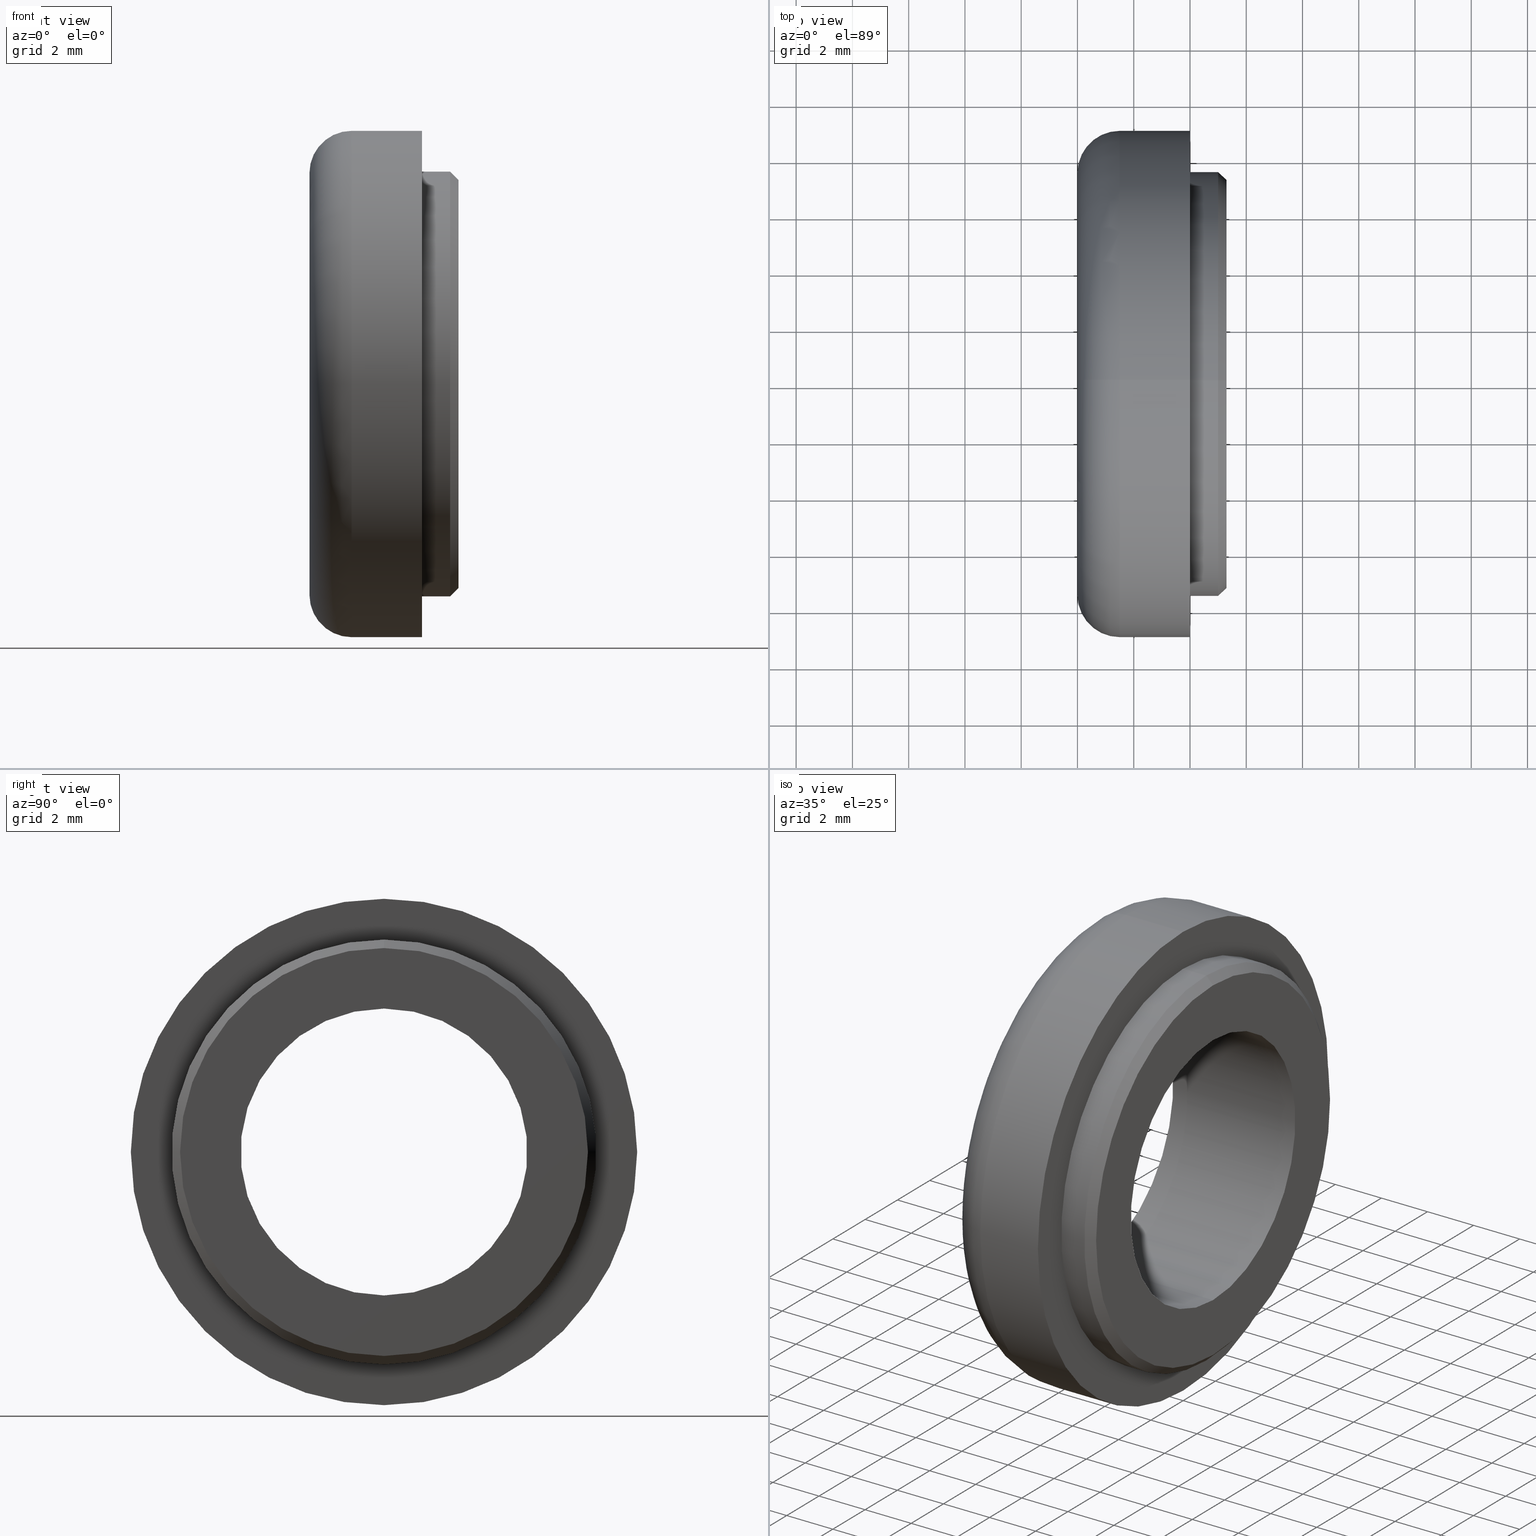
[diagram: canonical four-view strip — front | top / right | iso, engineering-drawing reading convention]
A machine part, canonical four-view strip (front | top / right | iso — engineering-drawing reading convention). The complete STEP part file that produces these views, byte-faithful:
ISO-10303-21;
HEADER;
FILE_DESCRIPTION (( 'STEP AP214' ),
    '1' );
FILE_NAME ('TL_421_M10.STEP',
    '2016-01-25T00:52:32',
    ( '' ),
    ( '' ),
    'SwSTEP 2.0',
    'SolidWorks 2015',
    '' );
FILE_SCHEMA (( 'AUTOMOTIVE_DESIGN' ));
ENDSEC;

DATA;
#1 = DIRECTION ( 'NONE',  ( -1.000000000000000000, -0.0000000000000000000, -0.0000000000000000000 ) ) ;
#2 = EDGE_CURVE ( 'NONE', #653, #156, #154, .T. ) ;
#3 = CARTESIAN_POINT ( 'NONE',  ( 2.500000000000002200, 0.0000000000000000000, 0.0000000000000000000 ) ) ;
#4 = CARTESIAN_POINT ( 'NONE',  ( 1.500000000000000000, 0.0000000000000000000, 0.0000000000000000000 ) ) ;
#5 = CARTESIAN_POINT ( 'NONE',  ( 4.000000000000000000, 0.0000000000000000000, 0.0000000000000000000 ) ) ;
#6 = UNCERTAINTY_MEASURE_WITH_UNIT (LENGTH_MEASURE( 1.000000000000000100E-005 ), #556, 'distance_accuracy_value', 'NONE');
#7 = CIRCLE ( 'NONE', #299, 5.099999999999999600 ) ;
#8 = DIRECTION ( 'NONE',  ( 0.0000000000000000000, 0.0000000000000000000, 1.000000000000000000 ) ) ;
#9 = CIRCLE ( 'NONE', #10, 7.549999999999999800 ) ;
#10 = AXIS2_PLACEMENT_3D ( 'NONE', #534, #194, #658 ) ;
#11 = CARTESIAN_POINT ( 'NONE',  ( 1.500000000000000000, 1.102182119232617700E-015, -9.000000000000000000 ) ) ;
#12 = DIRECTION ( 'NONE',  ( 0.0000000000000000000, 0.0000000000000000000, 1.000000000000000000 ) ) ;
#13 = ORIENTED_EDGE ( 'NONE', *, *, #390, .T. ) ;
#14 = DIRECTION ( 'NONE',  ( -1.000000000000000000, -0.0000000000000000000, -0.0000000000000000000 ) ) ;
#15 = CARTESIAN_POINT ( 'NONE',  ( 0.0000000000000000000, 0.0000000000000000000, 0.0000000000000000000 ) ) ;
#16 = VECTOR ( 'NONE', #252, 1000.000000000000000 ) ;
#17 = CARTESIAN_POINT ( 'NONE',  ( 3.799999999999998000, 0.0000000000000000000, 5.100000000000000500 ) ) ;
#18 = DIRECTION ( 'NONE',  ( 0.0000000000000000000, 0.0000000000000000000, -1.000000000000000000 ) ) ;
#19 = FILL_AREA_STYLE ('',( #144 ) ) ;
#20 = ORIENTED_EDGE ( 'NONE', *, *, #133, .F. ) ;
#21 = AXIS2_PLACEMENT_3D ( 'NONE', #255, #202, #464 ) ;
#22 = ORIENTED_EDGE ( 'NONE', *, *, #602, .T. ) ;
#23 = DIRECTION ( 'NONE',  ( 0.0000000000000000000, 0.0000000000000000000, 1.000000000000000000 ) ) ;
#24 = AXIS2_PLACEMENT_3D ( 'NONE', #293, #569, #12 ) ;
#25 =( NAMED_UNIT ( * ) SI_UNIT ( $, .STERADIAN. ) SOLID_ANGLE_UNIT ( ) );
#26 = CARTESIAN_POINT ( 'NONE',  ( 1.500000000000000000, 0.0000000000000000000, 0.0000000000000000000 ) ) ;
#27 = ITEM_DEFINED_TRANSFORMATION ( 'NONE', 'NONE', #596,  #134 ) ;
#28 = FACE_OUTER_BOUND ( 'NONE', #138, .T. ) ;
#29 = LINE ( 'NONE', #152, #254 ) ;
#30 =( NAMED_UNIT ( * ) SI_UNIT ( $, .STERADIAN. ) SOLID_ANGLE_UNIT ( ) );
#31 = EDGE_CURVE ( 'NONE', #156, #653, #467, .T. ) ;
#32 = VERTEX_POINT ( 'NONE', #149 ) ;
#33 = PRODUCT_DEFINITION ( 'UNKNOWN', '', #258, #215 ) ;
#34 = FACE_BOUND ( 'NONE', #701, .T. ) ;
#35 = CARTESIAN_POINT ( 'NONE',  ( 1.500000000000000000, 0.0000000000000000000, 9.000000000000000000 ) ) ;
#36 = EDGE_CURVE ( 'NONE', #310, #510, #7, .T. ) ;
#37 = DIRECTION ( 'NONE',  ( -1.000000000000000000, -0.0000000000000000000, -0.0000000000000000000 ) ) ;
#38 = DIRECTION ( 'NONE',  ( -1.000000000000000000, 0.0000000000000000000, -0.0000000000000000000 ) ) ;
#39 = CARTESIAN_POINT ( 'NONE',  ( 1.500000000000000000, 0.0000000000000000000, 0.0000000000000000000 ) ) ;
#40 = EDGE_LOOP ( 'NONE', ( #165, #395 ) ) ;
#41 = EDGE_LOOP ( 'NONE', ( #368, #349, #646, #169 ) ) ;
#42 = CARTESIAN_POINT ( 'NONE',  ( 2.500000000000000000, 7.549999999999999800, 0.0000000000000000000 ) ) ;
#43 = ORIENTED_EDGE ( 'NONE', *, *, #93, .F. ) ;
#44 = DIRECTION ( 'NONE',  ( -1.000000000000000000, -0.0000000000000000000, -0.0000000000000000000 ) ) ;
#45 = CARTESIAN_POINT ( 'NONE',  ( 4.000000000000000000, 0.0000000000000000000, 0.0000000000000000000 ) ) ;
#46 = EDGE_CURVE ( 'NONE', #472, #71, #302, .T. ) ;
#47 =( LENGTH_UNIT ( ) NAMED_UNIT ( * ) SI_UNIT ( .MILLI., .METRE. ) );
#48 = AXIS2_PLACEMENT_3D ( 'NONE', #637, #621, #547 ) ;
#49 = SURFACE_STYLE_USAGE ( .BOTH. , #599 ) ;
#50 = ADVANCED_FACE ( 'NONE', ( #445 ), #590, .T. ) ;
#51 = EDGE_LOOP ( 'NONE', ( #382, #403 ) ) ;
#52 = AXIS2_PLACEMENT_3D ( 'NONE', #88, #295, #433 ) ;
#53 = ORIENTED_EDGE ( 'NONE', *, *, #684, .T. ) ;
#54 = ADVANCED_FACE ( 'NONE', ( #603, #142 ), #367, .F. ) ;
#55 =( LENGTH_UNIT ( ) NAMED_UNIT ( * ) SI_UNIT ( .MILLI., .METRE. ) );
#56 = CONICAL_SURFACE ( 'NONE', #132, 7.250000000000000000, 0.7853981633974555000 ) ;
#57 = FACE_OUTER_BOUND ( 'NONE', #663, .T. ) ;
#58 = CARTESIAN_POINT ( 'NONE',  ( 4.000000000000000000, 1.102182119232617700E-015, -9.000000000000000000 ) ) ;
#59 = CARTESIAN_POINT ( 'NONE',  ( 0.0000000000000000000, 0.0000000000000000000, 0.0000000000000000000 ) ) ;
#60 = DIRECTION ( 'NONE',  ( -1.000000000000000000, -0.0000000000000000000, -0.0000000000000000000 ) ) ;
#61 = VERTEX_POINT ( 'NONE', #35 ) ;
#62 = EDGE_LOOP ( 'NONE', ( #488, #193, #638, #250 ) ) ;
#63 = UNCERTAINTY_MEASURE_WITH_UNIT (LENGTH_MEASURE( 1.000000000000000100E-005 ), #135, 'distance_accuracy_value', 'NONE');
#64 = AXIS2_PLACEMENT_3D ( 'NONE', #227, #444, #201 ) ;
#65 = AXIS2_PLACEMENT_3D ( 'NONE', #479, #697, #322 ) ;
#66 = PRODUCT_DEFINITION_SHAPE ( 'NONE', 'NONE',  #734 ) ;
#67 = EDGE_CURVE ( 'NONE', #32, #71, #432, .T. ) ;
#68 = DIRECTION ( 'NONE',  ( 0.0000000000000000000, 0.0000000000000000000, -1.000000000000000000 ) ) ;
#69 = EDGE_LOOP ( 'NONE', ( #94, #223 ) ) ;
#70 = EDGE_LOOP ( 'NONE', ( #20, #22, #591, #523 ) ) ;
#71 = VERTEX_POINT ( 'NONE', #170 ) ;
#72 = DIRECTION ( 'NONE',  ( -1.000000000000000000, -0.0000000000000000000, -0.0000000000000000000 ) ) ;
#73 =( LENGTH_UNIT ( ) NAMED_UNIT ( * ) SI_UNIT ( .MILLI., .METRE. ) );
#74 = SURFACE_STYLE_USAGE ( .BOTH. , #338 ) ;
#75 = DIRECTION ( 'NONE',  ( -1.000000000000000000, -0.0000000000000000000, -0.0000000000000000000 ) ) ;
#76 = DIRECTION ( 'NONE',  ( 0.0000000000000000000, 0.0000000000000000000, -1.000000000000000000 ) ) ;
#77 = CARTESIAN_POINT ( 'NONE',  ( 1.500000000000000000, 6.245698675651500800E-016, -5.099999999999999600 ) ) ;
#78 = COLOUR_RGB ( '',0.7921568627450980000, 0.8196078431372548800, 0.9333333333333333500 ) ;
#79 = PRODUCT_DEFINITION ( 'UNKNOWN', '', #345, #454 ) ;
#80 = CIRCLE ( 'NONE', #495, 7.250000000000000000 ) ;
#81 = CARTESIAN_POINT ( 'NONE',  ( 3.799999999999998000, 0.0000000000000000000, 0.0000000000000000000 ) ) ;
#82 = EDGE_CURVE ( 'NONE', #61, #187, #725, .T. ) ;
#83 = ORIENTED_EDGE ( 'NONE', *, *, #527, .T. ) ;
#84 = EDGE_LOOP ( 'NONE', ( #109, #327 ) ) ;
#85 = DIRECTION ( 'NONE',  ( -1.000000000000000000, -0.0000000000000000000, -0.0000000000000000000 ) ) ;
#86 = CARTESIAN_POINT ( 'NONE',  ( 3.799999999999998000, 6.245698675651501800E-016, -5.100000000000000500 ) ) ;
#87 = EDGE_CURVE ( 'NONE', #657, #640, #703, .T. ) ;
#88 = CARTESIAN_POINT ( 'NONE',  ( -88.98999999999999500, 0.0000000000000000000, 0.0000000000000000000 ) ) ;
#89 = COLOUR_RGB ( '',0.7921568627450980000, 0.8196078431372548800, 0.9333333333333333500 ) ;
#90 = CARTESIAN_POINT ( 'NONE',  ( 3.799999999999998000, 0.0000000000000000000, 0.0000000000000000000 ) ) ;
#91 = VECTOR ( 'NONE', #60, 1000.000000000000000 ) ;
#92 = AXIS2_PLACEMENT_3D ( 'NONE', #5, #392, #226 ) ;
#93 = EDGE_CURVE ( 'NONE', #281, #580, #285, .T. ) ;
#94 = ORIENTED_EDGE ( 'NONE', *, *, #122, .F. ) ;
#95 = AXIS2_PLACEMENT_3D ( 'NONE', #139, #136, #97 ) ;
#96 = EDGE_LOOP ( 'NONE', ( #421, #405, #282, #613 ) ) ;
#97 = DIRECTION ( 'NONE',  ( 0.0000000000000000000, 0.0000000000000000000, -1.000000000000000000 ) ) ;
#98 = ORIENTED_EDGE ( 'NONE', *, *, #2, .T. ) ;
#99 = DIRECTION ( 'NONE',  ( 1.000000000000000000, 0.0000000000000000000, 0.0000000000000000000 ) ) ;
#100 = SHAPE_REPRESENTATION ( 'TL_421_M10', ( #732, #596, #632 ), #659 ) ;
#101 = DIRECTION ( 'NONE',  ( 0.0000000000000000000, 0.0000000000000000000, 1.000000000000000000 ) ) ;
#102 = AXIS2_PLACEMENT_3D ( 'NONE', #283, #269, #544 ) ;
#103 = DIRECTION ( 'NONE',  ( 0.0000000000000000000, 0.0000000000000000000, 1.000000000000000000 ) ) ;
#104 = CIRCLE ( 'NONE', #608, 7.500000000000000000 ) ;
#105 = PRODUCT_DEFINITION_SHAPE ( 'NONE', 'NONE',  #33 ) ;
#106 = CYLINDRICAL_SURFACE ( 'NONE', #48, 5.099999999999999600 ) ;
#107 = AXIS2_PLACEMENT_3D ( 'NONE', #665, #419, #563 ) ;
#108 = DIRECTION ( 'NONE',  ( 0.0000000000000000000, 0.0000000000000000000, 1.000000000000000000 ) ) ;
#109 = ORIENTED_EDGE ( 'NONE', *, *, #46, .T. ) ;
#110 = CIRCLE ( 'NONE', #654, 7.549999999999999800 ) ;
#111 = EDGE_LOOP ( 'NONE', ( #422, #137 ) ) ;
#112 = ADVANCED_FACE ( 'NONE', ( #411, #567 ), #189, .F. ) ;
#113 = CARTESIAN_POINT ( 'NONE',  ( 3.500000000000003100, 9.246083333562514700E-016, -7.549999999999999800 ) ) ;
#114 = FACE_OUTER_BOUND ( 'NONE', #270, .T. ) ;
#115 =( NAMED_UNIT ( * ) PLANE_ANGLE_UNIT ( ) SI_UNIT ( $, .RADIAN. ) );
#116 = EDGE_CURVE ( 'NONE', #652, #677, #110, .T. ) ;
#117 = ADVANCED_FACE ( 'NONE', ( #268 ), #230, .F. ) ;
#118 = DIRECTION ( 'NONE',  ( 0.0000000000000000000, 0.0000000000000000000, 1.000000000000000000 ) ) ;
#119 = ORIENTED_EDGE ( 'NONE', *, *, #602, .F. ) ;
#120 = ORIENTED_EDGE ( 'NONE', *, *, #473, .F. ) ;
#121 = CARTESIAN_POINT ( 'NONE',  ( 3.799999999999998000, 0.0000000000000000000, 0.0000000000000000000 ) ) ;
#122 = EDGE_CURVE ( 'NONE', #622, #32, #545, .T. ) ;
#123 = DIRECTION ( 'NONE',  ( 1.000000000000000000, 0.0000000000000000000, 0.0000000000000000000 ) ) ;
#124 = CARTESIAN_POINT ( 'NONE',  ( 4.000000000000000000, 9.184850993605147900E-016, -7.500000000000000000 ) ) ;
#125 = CARTESIAN_POINT ( 'NONE',  ( -88.98999999999999500, 6.245698675651501800E-016, -5.100000000000000500 ) ) ;
#126 = CYLINDRICAL_SURFACE ( 'NONE', #24, 7.549999999999999800 ) ;
#127 = DIRECTION ( 'NONE',  ( -1.000000000000000000, -0.0000000000000000000, -0.0000000000000000000 ) ) ;
#128 = DIRECTION ( 'NONE',  ( -1.000000000000000000, -0.0000000000000000000, -0.0000000000000000000 ) ) ;
#129 = VECTOR ( 'NONE', #257, 1000.000000000000000 ) ;
#130 = DIRECTION ( 'NONE',  ( 0.0000000000000000000, 0.0000000000000000000, 1.000000000000000000 ) ) ;
#131 = ORIENTED_EDGE ( 'NONE', *, *, #31, .F. ) ;
#132 = AXIS2_PLACEMENT_3D ( 'NONE', #121, #1, #326 ) ;
#133 = EDGE_CURVE ( 'NONE', #532, #631, #247, .T. ) ;
#134 = AXIS2_PLACEMENT_3D ( 'NONE', #15, #358, #483 ) ;
#135 =( LENGTH_UNIT ( ) NAMED_UNIT ( * ) SI_UNIT ( .MILLI., .METRE. ) );
#136 = DIRECTION ( 'NONE',  ( 1.000000000000000000, 0.0000000000000000000, 0.0000000000000000000 ) ) ;
#137 = ORIENTED_EDGE ( 'NONE', *, *, #284, .T. ) ;
#138 = EDGE_LOOP ( 'NONE', ( #597, #524, #168, #407 ) ) ;
#139 = CARTESIAN_POINT ( 'NONE',  ( 1.500000000000000000, 0.0000000000000000000, 0.0000000000000000000 ) ) ;
#140 = CARTESIAN_POINT ( 'NONE',  ( 1.500000000000000000, 0.0000000000000000000, 0.0000000000000000000 ) ) ;
#141 = EDGE_CURVE ( 'NONE', #631, #529, #394, .T. ) ;
#142 = FACE_OUTER_BOUND ( 'NONE', #84, .T. ) ;
#143 = ORIENTED_EDGE ( 'NONE', *, *, #441, .T. ) ;
#144 = FILL_AREA_STYLE_COLOUR ( '', #586 ) ;
#145 = DIRECTION ( 'NONE',  ( 0.0000000000000000000, 0.0000000000000000000, -1.000000000000000000 ) ) ;
#146 = CIRCLE ( 'NONE', #678, 1.499999999999999600 ) ;
#147 = ORIENTED_EDGE ( 'NONE', *, *, #184, .F. ) ;
#148 =( NAMED_UNIT ( * ) PLANE_ANGLE_UNIT ( ) SI_UNIT ( $, .RADIAN. ) );
#149 = CARTESIAN_POINT ( 'NONE',  ( 2.500000000000002200, 9.184850993605147900E-016, -7.499999999999999100 ) ) ;
#150 = PRODUCT_DEFINITION ( 'UNKNOWN', '', #182, #528 ) ;
#151 = EDGE_CURVE ( 'NONE', #187, #61, #676, .T. ) ;
#152 = CARTESIAN_POINT ( 'NONE',  ( -88.98999999999999500, 0.0000000000000000000, 7.549999999999999800 ) ) ;
#153 = EDGE_LOOP ( 'NONE', ( #588, #546, #539, #731 ) ) ;
#154 = CIRCLE ( 'NONE', #224, 9.000000000000000000 ) ;
#155 = CARTESIAN_POINT ( 'NONE',  ( 1.500000000000000000, 0.0000000000000000000, -7.500000000000000000 ) ) ;
#156 = VERTEX_POINT ( 'NONE', #177 ) ;
#157 = DIRECTION ( 'NONE',  ( 1.000000000000000000, 0.0000000000000000000, 0.0000000000000000000 ) ) ;
#158 = ADVANCED_FACE ( 'NONE', ( #692, #370 ), #501, .F. ) ;
#159 = AXIS2_PLACEMENT_3D ( 'NONE', #398, #673, #8 ) ;
#160 = ITEM_DEFINED_TRANSFORMATION ( 'NONE', 'NONE', #632,  #134 ) ;
#161 = DIRECTION ( 'NONE',  ( 0.0000000000000000000, 0.0000000000000000000, -1.000000000000000000 ) ) ;
#162 = LINE ( 'NONE', #267, #730 ) ;
#163 = ADVANCED_FACE ( 'NONE', ( #211 ), #656, .T. ) ;
#164 = STYLED_ITEM ( 'NONE', ( #521 ), #718 ) ;
#165 = ORIENTED_EDGE ( 'NONE', *, *, #36, .F. ) ;
#166 = CARTESIAN_POINT ( 'NONE',  ( 0.0000000000000000000, 6.245698675651500800E-016, -5.099999999999999600 ) ) ;
#167 = DIRECTION ( 'NONE',  ( 0.0000000000000000000, 0.0000000000000000000, -1.000000000000000000 ) ) ;
#168 = ORIENTED_EDGE ( 'NONE', *, *, #46, .F. ) ;
#169 = ORIENTED_EDGE ( 'NONE', *, *, #492, .F. ) ;
#170 = CARTESIAN_POINT ( 'NONE',  ( 0.0000000000000000000, 9.184850993605147900E-016, -7.499999999999999100 ) ) ;
#171 = AXIS2_PLACEMENT_3D ( 'NONE', #691, #44, #651 ) ;
#172 =( NAMED_UNIT ( * ) PLANE_ANGLE_UNIT ( ) SI_UNIT ( $, .RADIAN. ) );
#173 = FACE_OUTER_BOUND ( 'NONE', #41, .T. ) ;
#174 = AXIS2_PLACEMENT_3D ( 'NONE', #493, #207, #118 ) ;
#175 = SHAPE_DEFINITION_REPRESENTATION ( #391, #320 ) ;
#176 = FACE_OUTER_BOUND ( 'NONE', #266, .T. ) ;
#177 = CARTESIAN_POINT ( 'NONE',  ( 4.000000000000000000, 0.0000000000000000000, 9.000000000000000000 ) ) ;
#178 = CARTESIAN_POINT ( 'NONE',  ( 1.500000000000000000, 0.0000000000000000000, 7.500000000000000000 ) ) ;
#179 = ORIENTED_EDGE ( 'NONE', *, *, #684, .F. ) ;
#180 = CARTESIAN_POINT ( 'NONE',  ( 3.799999999999998000, 0.0000000000000000000, 7.250000000000000000 ) ) ;
#181 = CIRCLE ( 'NONE', #286, 7.499999999999999100 ) ;
#182 = PRODUCT_DEFINITION_FORMATION_WITH_SPECIFIED_SOURCE ( 'ANY', '', #723, .NOT_KNOWN. ) ;
#183 = CARTESIAN_POINT ( 'NONE',  ( 3.500000000000003100, 0.0000000000000000000, 7.549999999999999800 ) ) ;
#184 = EDGE_CURVE ( 'NONE', #714, #348, #453, .T. ) ;
#185 = APPLICATION_PROTOCOL_DEFINITION ( 'draft international standard', 'automotive_design', 1998, #522 ) ;
#186 = ORIENTED_EDGE ( 'NONE', *, *, #520, .F. ) ;
#187 = VERTEX_POINT ( 'NONE', #11 ) ;
#188 =( REPRESENTATION_RELATIONSHIP ('NONE','NONE', #100, #344 ) REPRESENTATION_RELATIONSHIP_WITH_TRANSFORMATION ( #160 )SHAPE_REPRESENTATION_RELATIONSHIP( ) );
#189 = PLANE ( 'NONE',  #685 ) ;
#190 = CARTESIAN_POINT ( 'NONE',  ( 4.000000000000000000, 0.0000000000000000000, 7.500000000000000000 ) ) ;
#191 = CARTESIAN_POINT ( 'NONE',  ( 3.799999999999998000, 0.0000000000000000000, 0.0000000000000000000 ) ) ;
#192 = AXIS2_PLACEMENT_3D ( 'NONE', #618, #452, #76 ) ;
#193 = ORIENTED_EDGE ( 'NONE', *, *, #696, .T. ) ;
#194 = DIRECTION ( 'NONE',  ( -1.000000000000000000, -0.0000000000000000000, -0.0000000000000000000 ) ) ;
#195 = DIRECTION ( 'NONE',  ( -1.000000000000000000, -0.0000000000000000000, -0.0000000000000000000 ) ) ;
#196 = PRESENTATION_LAYER_ASSIGNMENT (  '', '', ( #164 ) ) ;
#197 = EDGE_CURVE ( 'NONE', #32, #622, #181, .T. ) ;
#198 = APPLICATION_CONTEXT ( 'automotive_design' ) ;
#199 = DIRECTION ( 'NONE',  ( 0.0000000000000000000, 0.0000000000000000000, 1.000000000000000000 ) ) ;
#200 = DIRECTION ( 'NONE',  ( -0.7071067811865424700, 0.0000000000000000000, 0.7071067811865526800 ) ) ;
#201 = DIRECTION ( 'NONE',  ( 0.0000000000000000000, 0.0000000000000000000, 1.000000000000000000 ) ) ;
#202 = DIRECTION ( 'NONE',  ( -1.000000000000000000, -0.0000000000000000000, -0.0000000000000000000 ) ) ;
#203 = EDGE_LOOP ( 'NONE', ( #712, #540 ) ) ;
#204 = ORIENTED_EDGE ( 'NONE', *, *, #184, .T. ) ;
#205 = DIRECTION ( 'NONE',  ( 0.0000000000000000000, 0.0000000000000000000, 1.000000000000000000 ) ) ;
#206 = AXIS2_PLACEMENT_3D ( 'NONE', #324, #38, #607 ) ;
#207 = DIRECTION ( 'NONE',  ( -1.000000000000000000, -0.0000000000000000000, -0.0000000000000000000 ) ) ;
#208 = MANIFOLD_SOLID_BREP ( '��]1', #554 ) ;
#209 = AXIS2_PLACEMENT_3D ( 'NONE', #140, #443, #686 ) ;
#210 = DIRECTION ( 'NONE',  ( 0.0000000000000000000, 0.0000000000000000000, 1.000000000000000000 ) ) ;
#211 = FACE_OUTER_BOUND ( 'NONE', #486, .T. ) ;
#212 = DIRECTION ( 'NONE',  ( 0.0000000000000000000, 0.0000000000000000000, -1.000000000000000000 ) ) ;
#213 = ORIENTED_EDGE ( 'NONE', *, *, #636, .F. ) ;
#214 = ADVANCED_FACE ( 'NONE', ( #316 ), #356, .F. ) ;
#215 = PRODUCT_DEFINITION_CONTEXT ( 'detailed design', #361, 'design' ) ;
#216 = APPLICATION_CONTEXT ( 'automotive_design' ) ;
#217 = DIRECTION ( 'NONE',  ( -1.000000000000000000, -0.0000000000000000000, -0.0000000000000000000 ) ) ;
#218 = LINE ( 'NONE', #58, #482 ) ;
#219 = CARTESIAN_POINT ( 'NONE',  ( 4.000000000000000000, 6.245698675651500800E-016, -5.099999999999999600 ) ) ;
#220 = LINE ( 'NONE', #551, #236 ) ;
#221 = PRODUCT_RELATED_PRODUCT_CATEGORY ( 'part', '', ( #723 ) ) ;
#222 = CIRCLE ( 'NONE', #192, 5.099999999999999600 ) ;
#223 = ORIENTED_EDGE ( 'NONE', *, *, #197, .F. ) ;
#224 = AXIS2_PLACEMENT_3D ( 'NONE', #609, #319, #145 ) ;
#225 = ORIENTED_EDGE ( 'NONE', *, *, #661, .F. ) ;
#226 = DIRECTION ( 'NONE',  ( 0.0000000000000000000, 0.0000000000000000000, -1.000000000000000000 ) ) ;
#227 = CARTESIAN_POINT ( 'NONE',  ( 4.000000000000000000, 0.0000000000000000000, 0.0000000000000000000 ) ) ;
#228 = CIRCLE ( 'NONE', #107, 5.099999999999999600 ) ;
#229 = FACE_OUTER_BOUND ( 'NONE', #153, .T. ) ;
#230 = CYLINDRICAL_SURFACE ( 'NONE', #64, 5.099999999999999600 ) ;
#231 = ORIENTED_EDGE ( 'NONE', *, *, #555, .F. ) ;
#232 = AXIS2_PLACEMENT_3D ( 'NONE', #4, #123, #212 ) ;
#233 = CARTESIAN_POINT ( 'NONE',  ( 0.0000000000000000000, 1.010333609296566400E-015, 7.500000000000000000 ) ) ;
#234 = MECHANICAL_DESIGN_GEOMETRIC_PRESENTATION_REPRESENTATION (  '', ( #164 ), #277 ) ;
#235 = EDGE_CURVE ( 'NONE', #640, #677, #583, .T. ) ;
#236 = VECTOR ( 'NONE', #414, 1000.000000000000000 ) ;
#237 = ORIENTED_EDGE ( 'NONE', *, *, #242, .F. ) ;
#238 = DIRECTION ( 'NONE',  ( 1.000000000000000000, 0.0000000000000000000, 0.0000000000000000000 ) ) ;
#239 = VERTEX_POINT ( 'NONE', #365 ) ;
#240 = ORIENTED_EDGE ( 'NONE', *, *, #527, .F. ) ;
#241 = CIRCLE ( 'NONE', #451, 7.499999999999999100 ) ;
#242 = EDGE_CURVE ( 'NONE', #499, #640, #330, .T. ) ;
#243 = DIRECTION ( 'NONE',  ( -1.000000000000000000, -0.0000000000000000000, -0.0000000000000000000 ) ) ;
#244 = AXIS2_PLACEMENT_3D ( 'NONE', #641, #517, #584 ) ;
#245 = ORIENTED_EDGE ( 'NONE', *, *, #661, .T. ) ;
#246 = FILL_AREA_STYLE_COLOUR ( '', #89 ) ;
#247 = LINE ( 'NONE', #248, #91 ) ;
#248 = CARTESIAN_POINT ( 'NONE',  ( 4.000000000000000000, 9.184850993605147900E-016, -7.500000000000000000 ) ) ;
#249 = STYLED_ITEM ( 'NONE', ( #672 ), #600 ) ;
#250 = ORIENTED_EDGE ( 'NONE', *, *, #402, .F. ) ;
#251 = SURFACE_STYLE_USAGE ( .BOTH. , #500 ) ;
#252 = DIRECTION ( 'NONE',  ( -1.000000000000000000, -0.0000000000000000000, -0.0000000000000000000 ) ) ;
#253 = ORIENTED_EDGE ( 'NONE', *, *, #636, .T. ) ;
#254 = VECTOR ( 'NONE', #14, 1000.000000000000000 ) ;
#255 = CARTESIAN_POINT ( 'NONE',  ( 2.500000000000002200, 0.0000000000000000000, 0.0000000000000000000 ) ) ;
#256 = ORIENTED_EDGE ( 'NONE', *, *, #635, .T. ) ;
#257 = DIRECTION ( 'NONE',  ( -1.000000000000000000, -0.0000000000000000000, -0.0000000000000000000 ) ) ;
#258 = PRODUCT_DEFINITION_FORMATION_WITH_SPECIFIED_SOURCE ( 'ANY', '', #669, .NOT_KNOWN. ) ;
#259 = ORIENTED_EDGE ( 'NONE', *, *, #314, .T. ) ;
#260 = AXIS2_PLACEMENT_3D ( 'NONE', #378, #426, #616 ) ;
#261 = CARTESIAN_POINT ( 'NONE',  ( 3.799999999999998000, 9.062386313690412400E-016, -7.250000000000000000 ) ) ;
#262 = CARTESIAN_POINT ( 'NONE',  ( 0.0000000000000000000, 0.0000000000000000000, 0.0000000000000000000 ) ) ;
#263 = PRESENTATION_STYLE_ASSIGNMENT (( #49 ) ) ;
#264 = CARTESIAN_POINT ( 'NONE',  ( 0.0000000000000000000, 0.0000000000000000000, 0.0000000000000000000 ) ) ;
#265 = CIRCLE ( 'NONE', #726, 5.100000000000000500 ) ;
#266 = EDGE_LOOP ( 'NONE', ( #256, #595, #715, #460 ) ) ;
#267 = CARTESIAN_POINT ( 'NONE',  ( -88.98999999999999500, 0.0000000000000000000, 7.499999999999999100 ) ) ;
#268 = FACE_OUTER_BOUND ( 'NONE', #704, .T. ) ;
#269 = DIRECTION ( 'NONE',  ( 1.000000000000000000, 0.0000000000000000000, 0.0000000000000000000 ) ) ;
#270 = EDGE_LOOP ( 'NONE', ( #313, #702, #303, #506 ) ) ;
#271 = DIRECTION ( 'NONE',  ( 0.0000000000000000000, 0.0000000000000000000, -1.000000000000000000 ) ) ;
#272 = ADVANCED_FACE ( 'NONE', ( #34, #57 ), #376, .F. ) ;
#273 = AXIS2_PLACEMENT_3D ( 'NONE', #573, #562, #561 ) ;
#274 = CARTESIAN_POINT ( 'NONE',  ( 4.000000000000000000, 0.0000000000000000000, 0.0000000000000000000 ) ) ;
#275 =( NAMED_UNIT ( * ) PLANE_ANGLE_UNIT ( ) SI_UNIT ( $, .RADIAN. ) );
#276 = CYLINDRICAL_SURFACE ( 'NONE', #52, 5.100000000000000500 ) ;
#277 =( GEOMETRIC_REPRESENTATION_CONTEXT ( 3 ) GLOBAL_UNCERTAINTY_ASSIGNED_CONTEXT ( ( #667 ) ) GLOBAL_UNIT_ASSIGNED_CONTEXT ( ( #655, #307, #372 ) ) REPRESENTATION_CONTEXT ( 'NONE', 'WORKASPACE' ) );
#278 = DIRECTION ( 'NONE',  ( 1.000000000000000000, 0.0000000000000000000, 0.0000000000000000000 ) ) ;
#279 = ADVANCED_FACE ( 'NONE', ( #375 ), #397, .T. ) ;
#280 = EDGE_CURVE ( 'NONE', #653, #187, #218, .T. ) ;
#281 = VERTEX_POINT ( 'NONE', #77 ) ;
#282 = ORIENTED_EDGE ( 'NONE', *, *, #671, .T. ) ;
#283 = CARTESIAN_POINT ( 'NONE',  ( 1.500000000000000000, 0.0000000000000000000, 0.0000000000000000000 ) ) ;
#284 = EDGE_CURVE ( 'NONE', #353, #666, #321, .T. ) ;
#285 = CIRCLE ( 'NONE', #585, 5.099999999999999600 ) ;
#286 = AXIS2_PLACEMENT_3D ( 'NONE', #717, #680, #288 ) ;
#287 = DIRECTION ( 'NONE',  ( 0.0000000000000000000, 0.0000000000000000000, 1.000000000000000000 ) ) ;
#288 = DIRECTION ( 'NONE',  ( 0.0000000000000000000, 0.0000000000000000000, 1.000000000000000000 ) ) ;
#289 = PRESENTATION_LAYER_ASSIGNMENT (  '', '', ( #249 ) ) ;
#290 = DIRECTION ( 'NONE',  ( 0.0000000000000000000, 0.0000000000000000000, 1.000000000000000000 ) ) ;
#291 = CARTESIAN_POINT ( 'NONE',  ( 4.000000000000000000, 0.0000000000000000000, 9.000000000000000000 ) ) ;
#292 = FACE_OUTER_BOUND ( 'NONE', #371, .T. ) ;
#293 = CARTESIAN_POINT ( 'NONE',  ( -88.98999999999999500, 0.0000000000000000000, 0.0000000000000000000 ) ) ;
#294 = ORIENTED_EDGE ( 'NONE', *, *, #487, .T. ) ;
#295 = DIRECTION ( 'NONE',  ( -1.000000000000000000, -0.0000000000000000000, -0.0000000000000000000 ) ) ;
#296 = PRODUCT_RELATED_PRODUCT_CATEGORY ( 'part', '', ( #669 ) ) ;
#297 = COLOUR_RGB ( '',0.7921568627450980000, 0.8196078431372548800, 0.9333333333333333500 ) ;
#298 = APPLICATION_PROTOCOL_DEFINITION ( 'draft international standard', 'automotive_design', 1998, #361 ) ;
#299 = AXIS2_PLACEMENT_3D ( 'NONE', #315, #708, #23 ) ;
#300 = FACE_OUTER_BOUND ( 'NONE', #447, .T. ) ;
#301 = APPLICATION_PROTOCOL_DEFINITION ( 'draft international standard', 'automotive_design', 1998, #699 ) ;
#302 = CIRCLE ( 'NONE', #347, 7.499999999999999100 ) ;
#303 = ORIENTED_EDGE ( 'NONE', *, *, #116, .F. ) ;
#304 = DIRECTION ( 'NONE',  ( -0.7071067811865424700, 8.659560562354995700E-017, -0.7071067811865526800 ) ) ;
#305 = CONTEXT_DEPENDENT_SHAPE_REPRESENTATION ( #542, #548 ) ;
#306 = CYLINDRICAL_SURFACE ( 'NONE', #572, 7.499999999999999100 ) ;
#307 =( NAMED_UNIT ( * ) PLANE_ANGLE_UNIT ( ) SI_UNIT ( $, .RADIAN. ) );
#308 = CARTESIAN_POINT ( 'NONE',  ( 3.799999999999998000, 8.878689293818310100E-016, -7.250000000000000000 ) ) ;
#309 = AXIS2_PLACEMENT_3D ( 'NONE', #81, #311, #437 ) ;
#310 = VERTEX_POINT ( 'NONE', #434 ) ;
#311 = DIRECTION ( 'NONE',  ( -1.000000000000000000, -0.0000000000000000000, -0.0000000000000000000 ) ) ;
#312 =( GEOMETRIC_REPRESENTATION_CONTEXT ( 3 ) GLOBAL_UNCERTAINTY_ASSIGNED_CONTEXT ( ( #491 ) ) GLOBAL_UNIT_ASSIGNED_CONTEXT ( ( #73, #115, #30 ) ) REPRESENTATION_CONTEXT ( 'NONE', 'WORKASPACE' ) );
#313 = ORIENTED_EDGE ( 'NONE', *, *, #87, .T. ) ;
#314 = EDGE_CURVE ( 'NONE', #499, #581, #80, .T. ) ;
#315 = CARTESIAN_POINT ( 'NONE',  ( 0.0000000000000000000, 0.0000000000000000000, 0.0000000000000000000 ) ) ;
#316 = FACE_OUTER_BOUND ( 'NONE', #70, .T. ) ;
#317 = CARTESIAN_POINT ( 'NONE',  ( 0.0000000000000000000, 0.0000000000000000000, 0.0000000000000000000 ) ) ;
#318 = SURFACE_STYLE_FILL_AREA ( #634 ) ;
#319 = DIRECTION ( 'NONE',  ( 1.000000000000000000, 0.0000000000000000000, 0.0000000000000000000 ) ) ;
#320 = SHAPE_REPRESENTATION ( 'washer', ( #134 ), #709 ) ;
#321 = CIRCLE ( 'NONE', #643, 5.100000000000000500 ) ;
#322 = DIRECTION ( 'NONE',  ( 0.0000000000000000000, 0.0000000000000000000, -1.000000000000000000 ) ) ;
#323 = EDGE_CURVE ( 'NONE', #353, #510, #346, .T. ) ;
#324 = CARTESIAN_POINT ( 'NONE',  ( 3.799999999999998900, 5.100000000000000500, 0.0000000000000000000 ) ) ;
#325 = ORIENTED_EDGE ( 'NONE', *, *, #487, .F. ) ;
#326 = DIRECTION ( 'NONE',  ( 0.0000000000000000000, 0.0000000000000000000, 1.000000000000000000 ) ) ;
#327 = ORIENTED_EDGE ( 'NONE', *, *, #604, .T. ) ;
#328 = STYLED_ITEM ( 'NONE', ( #427 ), #208 ) ;
#329 =( LENGTH_UNIT ( ) NAMED_UNIT ( * ) SI_UNIT ( .MILLI., .METRE. ) );
#330 = LINE ( 'NONE', #308, #435 ) ;
#331 = MECHANICAL_DESIGN_GEOMETRIC_PRESENTATION_REPRESENTATION (  '', ( #249 ), #369 ) ;
#332 = SHAPE_DEFINITION_REPRESENTATION ( #105, #344 ) ;
#333 = CARTESIAN_POINT ( 'NONE',  ( 0.0000000000000000000, 0.0000000000000000000, 0.0000000000000000000 ) ) ;
#334 = CIRCLE ( 'NONE', #412, 7.500000000000000000 ) ;
#335 = ADVANCED_FACE ( 'NONE', ( #649 ), #106, .F. ) ;
#336 = CARTESIAN_POINT ( 'NONE',  ( 2.500000000000002200, 0.0000000000000000000, 7.499999999999999100 ) ) ;
#337 = ORIENTED_EDGE ( 'NONE', *, *, #626, .T. ) ;
#338 = SURFACE_SIDE_STYLE ('',( #318 ) ) ;
#339 = ORIENTED_EDGE ( 'NONE', *, *, #555, .T. ) ;
#340 = ADVANCED_FACE ( 'NONE', ( #505, #300 ), #363, .T. ) ;
#341 =( NAMED_UNIT ( * ) PLANE_ANGLE_UNIT ( ) SI_UNIT ( $, .RADIAN. ) );
#342 = DIRECTION ( 'NONE',  ( 1.000000000000000000, 0.0000000000000000000, 0.0000000000000000000 ) ) ;
#343 = CYLINDRICAL_SURFACE ( 'NONE', #159, 5.100000000000000500 ) ;
#344 = SHAPE_REPRESENTATION ( 'packing', ( #134 ), #312 ) ;
#345 = PRODUCT_DEFINITION_FORMATION_WITH_SPECIFIED_SOURCE ( 'ANY', '', #619, .NOT_KNOWN. ) ;
#346 = LINE ( 'NONE', #125, #16 ) ;
#347 = AXIS2_PLACEMENT_3D ( 'NONE', #262, #577, #612 ) ;
#348 = VERTEX_POINT ( 'NONE', #233 ) ;
#349 = ORIENTED_EDGE ( 'NONE', *, *, #280, .T. ) ;
#350 = UNCERTAINTY_MEASURE_WITH_UNIT (LENGTH_MEASURE( 1.000000000000000100E-005 ), #47, 'distance_accuracy_value', 'NONE');
#351 = DIRECTION ( 'NONE',  ( -1.000000000000000000, 0.0000000000000000000, 0.0000000000000000000 ) ) ;
#352 = AXIS2_PLACEMENT_3D ( 'NONE', #425, #75, #101 ) ;
#353 = VERTEX_POINT ( 'NONE', #86 ) ;
#354 = DIRECTION ( 'NONE',  ( 0.0000000000000000000, 0.0000000000000000000, -1.000000000000000000 ) ) ;
#355 = STYLED_ITEM ( 'NONE', ( #263 ), #408 ) ;
#356 = CYLINDRICAL_SURFACE ( 'NONE', #568, 7.500000000000000000 ) ;
#357 = EDGE_CURVE ( 'NONE', #693, #529, #220, .T. ) ;
#358 = DIRECTION ( 'NONE',  ( 0.0000000000000000000, 0.0000000000000000000, 1.000000000000000000 ) ) ;
#359 = DIRECTION ( 'NONE',  ( 0.0000000000000000000, 0.0000000000000000000, 1.000000000000000000 ) ) ;
#360 = ORIENTED_EDGE ( 'NONE', *, *, #141, .T. ) ;
#361 = APPLICATION_CONTEXT ( 'automotive_design' ) ;
#362 = CLOSED_SHELL ( 'NONE', ( #117, #729, #629, #457, #279, #340, #272, #214, #576, #163, #335 ) ) ;
#363 = PLANE ( 'NONE',  #92 ) ;
#364 = ORIENTED_EDGE ( 'NONE', *, *, #82, .F. ) ;
#365 = CARTESIAN_POINT ( 'NONE',  ( 0.0000000000000000000, 0.0000000000000000000, 5.099999999999999600 ) ) ;
#366 = PRESENTATION_LAYER_ASSIGNMENT (  '', '', ( #328 ) ) ;
#367 = PLANE ( 'NONE',  #507 ) ;
#368 = ORIENTED_EDGE ( 'NONE', *, *, #2, .F. ) ;
#369 =( GEOMETRIC_REPRESENTATION_CONTEXT ( 3 ) GLOBAL_UNCERTAINTY_ASSIGNED_CONTEXT ( ( #690 ) ) GLOBAL_UNIT_ASSIGNED_CONTEXT ( ( #55, #341, #630 ) ) REPRESENTATION_CONTEXT ( 'NONE', 'WORKASPACE' ) );
#370 = FACE_BOUND ( 'NONE', #111, .T. ) ;
#371 = EDGE_LOOP ( 'NONE', ( #515, #186, #420, #728 ) ) ;
#372 =( NAMED_UNIT ( * ) SI_UNIT ( $, .STERADIAN. ) SOLID_ANGLE_UNIT ( ) );
#373 = CARTESIAN_POINT ( 'NONE',  ( 2.500000000000002200, 0.0000000000000000000, 0.0000000000000000000 ) ) ;
#374 = DIRECTION ( 'NONE',  ( 1.000000000000000000, 0.0000000000000000000, 0.0000000000000000000 ) ) ;
#375 = FACE_OUTER_BOUND ( 'NONE', #476, .T. ) ;
#376 = PLANE ( 'NONE',  #606 ) ;
#377 = CIRCLE ( 'NONE', #706, 7.549999999999999800 ) ;
#378 = CARTESIAN_POINT ( 'NONE',  ( 4.000000000000000000, 0.0000000000000000000, 0.0000000000000000000 ) ) ;
#379 = ORIENTED_EDGE ( 'NONE', *, *, #598, .T. ) ;
#380 =( NAMED_UNIT ( * ) SI_UNIT ( $, .STERADIAN. ) SOLID_ANGLE_UNIT ( ) );
#381 = PRODUCT_RELATED_PRODUCT_CATEGORY ( 'part', '', ( #619 ) ) ;
#382 = ORIENTED_EDGE ( 'NONE', *, *, #490, .F. ) ;
#383 = DIRECTION ( 'NONE',  ( -1.000000000000000000, -0.0000000000000000000, -0.0000000000000000000 ) ) ;
#384 = ORIENTED_EDGE ( 'NONE', *, *, #93, .T. ) ;
#385 = AXIS2_PLACEMENT_3D ( 'NONE', #39, #614, #167 ) ;
#386 = CARTESIAN_POINT ( 'NONE',  ( 0.0000000000000000000, 6.245698675651500800E-016, -5.099999999999999600 ) ) ;
#387 = DIRECTION ( 'NONE',  ( -1.000000000000000000, -0.0000000000000000000, -0.0000000000000000000 ) ) ;
#388 = FACE_OUTER_BOUND ( 'NONE', #418, .T. ) ;
#389 = CARTESIAN_POINT ( 'NONE',  ( 2.500000000000002200, 9.246083333562516700E-016, -7.549999999999999800 ) ) ;
#390 = EDGE_CURVE ( 'NONE', #581, #657, #553, .T. ) ;
#391 = PRODUCT_DEFINITION_SHAPE ( 'NONE', 'NONE',  #79 ) ;
#392 = DIRECTION ( 'NONE',  ( 1.000000000000000000, 0.0000000000000000000, 0.0000000000000000000 ) ) ;
#393 = ADVANCED_FACE ( 'NONE', ( #463 ), #343, .F. ) ;
#394 = CIRCLE ( 'NONE', #721, 7.500000000000000000 ) ;
#395 = ORIENTED_EDGE ( 'NONE', *, *, #626, .F. ) ;
#396 = ADVANCED_FACE ( 'NONE', ( #484 ), #56, .T. ) ;
#397 = CYLINDRICAL_SURFACE ( 'NONE', #674, 9.000000000000000000 ) ;
#398 = CARTESIAN_POINT ( 'NONE',  ( -88.98999999999999500, 0.0000000000000000000, 0.0000000000000000000 ) ) ;
#399 = CIRCLE ( 'NONE', #232, 7.500000000000000000 ) ;
#400 = PRESENTATION_LAYER_ASSIGNMENT (  '', '', ( #355 ) ) ;
#401 = DIRECTION ( 'NONE',  ( 1.000000000000000000, 0.0000000000000000000, 0.0000000000000000000 ) ) ;
#402 = EDGE_CURVE ( 'NONE', #677, #652, #377, .T. ) ;
#403 = ORIENTED_EDGE ( 'NONE', *, *, #314, .F. ) ;
#404 = CARTESIAN_POINT ( 'NONE',  ( 3.799999999999998000, 0.0000000000000000000, 0.0000000000000000000 ) ) ;
#405 = ORIENTED_EDGE ( 'NONE', *, *, #197, .T. ) ;
#406 = ORIENTED_EDGE ( 'NONE', *, *, #480, .T. ) ;
#407 = ORIENTED_EDGE ( 'NONE', *, *, #671, .F. ) ;
#408 = ADVANCED_BREP_SHAPE_REPRESENTATION ( '', ( #208, #134 ), #312 ) ;
#409 = CIRCLE ( 'NONE', #65, 7.500000000000000000 ) ;
#410 = MECHANICAL_DESIGN_GEOMETRIC_PRESENTATION_REPRESENTATION (  '', ( #328 ), #448 ) ;
#411 = FACE_BOUND ( 'NONE', #69, .T. ) ;
#412 = AXIS2_PLACEMENT_3D ( 'NONE', #274, #157, #271 ) ;
#413 = LINE ( 'NONE', #471, #470 ) ;
#414 = DIRECTION ( 'NONE',  ( -1.000000000000000000, -0.0000000000000000000, -0.0000000000000000000 ) ) ;
#415 = CARTESIAN_POINT ( 'NONE',  ( 1.500000000000000000, 9.184850993605147900E-016, 7.500000000000000000 ) ) ;
#416 = DIRECTION ( 'NONE',  ( -1.000000000000000000, -0.0000000000000000000, -0.0000000000000000000 ) ) ;
#417 = SHAPE_REPRESENTATION_RELATIONSHIP ( 'NONE' , 'NONE' ,  #344, #408 ) ;
#418 = EDGE_LOOP ( 'NONE', ( #406, #360 ) ) ;
#419 = DIRECTION ( 'NONE',  ( -1.000000000000000000, -0.0000000000000000000, -0.0000000000000000000 ) ) ;
#420 = ORIENTED_EDGE ( 'NONE', *, *, #473, .T. ) ;
#421 = ORIENTED_EDGE ( 'NONE', *, *, #67, .F. ) ;
#422 = ORIENTED_EDGE ( 'NONE', *, *, #520, .T. ) ;
#423 = DIRECTION ( 'NONE',  ( 0.0000000000000000000, 1.000000000000000000, -1.224646799147353200E-016 ) ) ;
#424 = CARTESIAN_POINT ( 'NONE',  ( 0.0000000000000000000, 0.0000000000000000000, 0.0000000000000000000 ) ) ;
#425 = CARTESIAN_POINT ( 'NONE',  ( 3.799999999999998000, 0.0000000000000000000, 0.0000000000000000000 ) ) ;
#426 = DIRECTION ( 'NONE',  ( 1.000000000000000000, 0.0000000000000000000, 0.0000000000000000000 ) ) ;
#427 = PRESENTATION_STYLE_ASSIGNMENT (( #74 ) ) ;
#428 = SURFACE_STYLE_FILL_AREA ( #19 ) ;
#429 = FACE_OUTER_BOUND ( 'NONE', #62, .T. ) ;
#430 = PRODUCT_DEFINITION_SHAPE ( 'NONE', 'NONE',  #150 ) ;
#431 = APPLICATION_PROTOCOL_DEFINITION ( 'draft international standard', 'automotive_design', 1998, #719 ) ;
#432 = LINE ( 'NONE', #559, #129 ) ;
#433 = DIRECTION ( 'NONE',  ( 0.0000000000000000000, 0.0000000000000000000, 1.000000000000000000 ) ) ;
#434 = CARTESIAN_POINT ( 'NONE',  ( 0.0000000000000000000, 0.0000000000000000000, 5.099999999999999600 ) ) ;
#435 = VECTOR ( 'NONE', #304, 1000.000000000000000 ) ;
#436 = LINE ( 'NONE', #219, #456 ) ;
#437 = DIRECTION ( 'NONE',  ( 0.0000000000000000000, 0.0000000000000000000, 1.000000000000000000 ) ) ;
#438 = EDGE_LOOP ( 'NONE', ( #237, #259, #13, #711 ) ) ;
#439 = MECHANICAL_DESIGN_GEOMETRIC_PRESENTATION_REPRESENTATION (  '', ( #355 ), #478 ) ;
#440 = ORIENTED_EDGE ( 'NONE', *, *, #323, .T. ) ;
#441 = EDGE_CURVE ( 'NONE', #580, #239, #582, .T. ) ;
#442 = DIRECTION ( 'NONE',  ( 0.0000000000000000000, 0.0000000000000000000, 1.000000000000000000 ) ) ;
#443 = DIRECTION ( 'NONE',  ( 1.000000000000000000, 0.0000000000000000000, 0.0000000000000000000 ) ) ;
#444 = DIRECTION ( 'NONE',  ( -1.000000000000000000, 0.0000000000000000000, 0.0000000000000000000 ) ) ;
#445 = FACE_OUTER_BOUND ( 'NONE', #96, .T. ) ;
#446 = FILL_AREA_STYLE_COLOUR ( '', #297 ) ;
#447 = EDGE_LOOP ( 'NONE', ( #650, #98 ) ) ;
#448 =( GEOMETRIC_REPRESENTATION_CONTEXT ( 3 ) GLOBAL_UNCERTAINTY_ASSIGNED_CONTEXT ( ( #350 ) ) GLOBAL_UNIT_ASSIGNED_CONTEXT ( ( #47, #275, #380 ) ) REPRESENTATION_CONTEXT ( 'NONE', 'WORKASPACE' ) );
#449 = VECTOR ( 'NONE', #85, 1000.000000000000000 ) ;
#450 = DIRECTION ( 'NONE',  ( 0.0000000000000000000, 0.0000000000000000000, 1.000000000000000000 ) ) ;
#451 = AXIS2_PLACEMENT_3D ( 'NONE', #333, #675, #623 ) ;
#452 = DIRECTION ( 'NONE',  ( 1.000000000000000000, 0.0000000000000000000, 0.0000000000000000000 ) ) ;
#453 = CIRCLE ( 'NONE', #171, 7.500000000000000000 ) ;
#454 = PRODUCT_DEFINITION_CONTEXT ( 'detailed design', #699, 'design' ) ;
#455 = CONTEXT_DEPENDENT_SHAPE_REPRESENTATION ( #188, #66 ) ;
#456 = VECTOR ( 'NONE', #351, 1000.000000000000000 ) ;
#457 = ADVANCED_FACE ( 'NONE', ( #173 ), #502, .T. ) ;
#458 = PLANE ( 'NONE',  #209 ) ;
#459 = CARTESIAN_POINT ( 'NONE',  ( 2.500000000000002200, 0.0000000000000000000, 7.549999999999999800 ) ) ;
#460 = ORIENTED_EDGE ( 'NONE', *, *, #357, .F. ) ;
#461 = DIRECTION ( 'NONE',  ( -1.000000000000000000, 0.0000000000000000000, 0.0000000000000000000 ) ) ;
#462 = FILL_AREA_STYLE ('',( #246 ) ) ;
#463 = FACE_OUTER_BOUND ( 'NONE', #695, .T. ) ;
#464 = DIRECTION ( 'NONE',  ( 0.0000000000000000000, 0.0000000000000000000, 1.000000000000000000 ) ) ;
#465 = CARTESIAN_POINT ( 'NONE',  ( 4.000000000000000000, 0.0000000000000000000, 5.099999999999999600 ) ) ;
#466 = AXIS2_PLACEMENT_3D ( 'NONE', #477, #383, #450 ) ;
#467 = CIRCLE ( 'NONE', #260, 9.000000000000000000 ) ;
#468 = ORIENTED_EDGE ( 'NONE', *, *, #280, .F. ) ;
#469 = DIRECTION ( 'NONE',  ( 1.000000000000000000, 0.0000000000000000000, 0.0000000000000000000 ) ) ;
#470 = VECTOR ( 'NONE', #705, 1000.000000000000000 ) ;
#471 = CARTESIAN_POINT ( 'NONE',  ( -88.98999999999999500, 0.0000000000000000000, 5.100000000000000500 ) ) ;
#472 = VERTEX_POINT ( 'NONE', #615 ) ;
#473 = EDGE_CURVE ( 'NONE', #666, #310, #413, .T. ) ;
#474 = CIRCLE ( 'NONE', #531, 5.099999999999999600 ) ;
#475 = DIRECTION ( 'NONE',  ( 1.000000000000000000, 0.0000000000000000000, 0.0000000000000000000 ) ) ;
#476 = EDGE_LOOP ( 'NONE', ( #468, #131, #664, #628 ) ) ;
#477 = CARTESIAN_POINT ( 'NONE',  ( -88.98999999999999500, 0.0000000000000000000, 0.0000000000000000000 ) ) ;
#478 =( GEOMETRIC_REPRESENTATION_CONTEXT ( 3 ) GLOBAL_UNCERTAINTY_ASSIGNED_CONTEXT ( ( #579 ) ) GLOBAL_UNIT_ASSIGNED_CONTEXT ( ( #329, #172, #25 ) ) REPRESENTATION_CONTEXT ( 'NONE', 'WORKASPACE' ) );
#479 = CARTESIAN_POINT ( 'NONE',  ( 0.0000000000000000000, 0.0000000000000000000, 0.0000000000000000000 ) ) ;
#480 = EDGE_CURVE ( 'NONE', #529, #631, #399, .T. ) ;
#481 = CARTESIAN_POINT ( 'NONE',  ( 0.0000000000000000000, 0.0000000000000000000, 0.0000000000000000000 ) ) ;
#482 = VECTOR ( 'NONE', #416, 1000.000000000000000 ) ;
#483 = DIRECTION ( 'NONE',  ( 1.000000000000000000, 0.0000000000000000000, 0.0000000000000000000 ) ) ;
#484 = FACE_OUTER_BOUND ( 'NONE', #438, .T. ) ;
#485 = CARTESIAN_POINT ( 'NONE',  ( 0.0000000000000000000, 0.0000000000000000000, -7.500000000000000000 ) ) ;
#486 = EDGE_LOOP ( 'NONE', ( #240, #147, #245, #364 ) ) ;
#487 = EDGE_CURVE ( 'NONE', #239, #645, #222, .T. ) ;
#488 = ORIENTED_EDGE ( 'NONE', *, *, #235, .F. ) ;
#489 = CARTESIAN_POINT ( 'NONE',  ( 2.168404344971008900E-016, 7.499999999999999100, 0.0000000000000000000 ) ) ;
#490 = EDGE_CURVE ( 'NONE', #581, #499, #533, .T. ) ;
#491 = UNCERTAINTY_MEASURE_WITH_UNIT (LENGTH_MEASURE( 1.000000000000000100E-005 ), #73, 'distance_accuracy_value', 'NONE');
#492 = EDGE_CURVE ( 'NONE', #156, #61, #592, .T. ) ;
#493 = CARTESIAN_POINT ( 'NONE',  ( -88.98999999999999500, 0.0000000000000000000, 0.0000000000000000000 ) ) ;
#494 = DIRECTION ( 'NONE',  ( 0.0000000000000000000, 0.0000000000000000000, 1.000000000000000000 ) ) ;
#495 = AXIS2_PLACEMENT_3D ( 'NONE', #191, #217, #511 ) ;
#496 = SHAPE_DEFINITION_REPRESENTATION ( #430, #100 ) ;
#497 = CARTESIAN_POINT ( 'NONE',  ( 4.000000000000000000, 0.0000000000000000000, 0.0000000000000000000 ) ) ;
#498 = AXIS2_PLACEMENT_3D ( 'NONE', #59, #633, #668 ) ;
#499 = VERTEX_POINT ( 'NONE', #261 ) ;
#500 = SURFACE_SIDE_STYLE ('',( #660 ) ) ;
#501 = PLANE ( 'NONE',  #206 ) ;
#502 = CYLINDRICAL_SURFACE ( 'NONE', #273, 9.000000000000000000 ) ;
#503 =( NAMED_UNIT ( * ) SI_UNIT ( $, .STERADIAN. ) SOLID_ANGLE_UNIT ( ) );
#504 = DIRECTION ( 'NONE',  ( -1.000000000000000000, -0.0000000000000000000, -0.0000000000000000000 ) ) ;
#505 = FACE_BOUND ( 'NONE', #682, .T. ) ;
#506 = ORIENTED_EDGE ( 'NONE', *, *, #513, .F. ) ;
#507 = AXIS2_PLACEMENT_3D ( 'NONE', #489, #536, #354 ) ;
#508 = DIRECTION ( 'NONE',  ( 0.0000000000000000000, 0.0000000000000000000, -1.000000000000000000 ) ) ;
#509 = DIRECTION ( 'NONE',  ( -1.000000000000000000, -0.0000000000000000000, -0.0000000000000000000 ) ) ;
#510 = VERTEX_POINT ( 'NONE', #386 ) ;
#511 = DIRECTION ( 'NONE',  ( 0.0000000000000000000, 0.0000000000000000000, 1.000000000000000000 ) ) ;
#512 = PRODUCT_CONTEXT ( 'NONE', #719, 'mechanical' ) ;
#513 = EDGE_CURVE ( 'NONE', #657, #652, #29, .T. ) ;
#514 = ADVANCED_FACE ( 'NONE', ( #229 ), #587, .T. ) ;
#515 = ORIENTED_EDGE ( 'NONE', *, *, #323, .F. ) ;
#516 = CARTESIAN_POINT ( 'NONE',  ( -88.98999999999999500, 0.0000000000000000000, 0.0000000000000000000 ) ) ;
#517 = DIRECTION ( 'NONE',  ( 1.000000000000000000, 0.0000000000000000000, 0.0000000000000000000 ) ) ;
#518 = ADVANCED_FACE ( 'NONE', ( #114 ), #126, .T. ) ;
#519 = SURFACE_STYLE_USAGE ( .BOTH. , #578 ) ;
#520 = EDGE_CURVE ( 'NONE', #666, #353, #265, .T. ) ;
#521 = PRESENTATION_STYLE_ASSIGNMENT (( #251 ) ) ;
#522 = APPLICATION_CONTEXT ( 'automotive_design' ) ;
#523 = ORIENTED_EDGE ( 'NONE', *, *, #141, .F. ) ;
#524 = ORIENTED_EDGE ( 'NONE', *, *, #67, .T. ) ;
#525 = DIRECTION ( 'NONE',  ( 0.0000000000000000000, 0.0000000000000000000, -1.000000000000000000 ) ) ;
#526 = VECTOR ( 'NONE', #461, 1000.000000000000000 ) ;
#527 = EDGE_CURVE ( 'NONE', #348, #61, #564, .T. ) ;
#528 = PRODUCT_DEFINITION_CONTEXT ( 'detailed design', #198, 'design' ) ;
#529 = VERTEX_POINT ( 'NONE', #178 ) ;
#530 = CARTESIAN_POINT ( 'NONE',  ( 3.500000000000003100, 0.0000000000000000000, 0.0000000000000000000 ) ) ;
#531 = AXIS2_PLACEMENT_3D ( 'NONE', #264, #387, #103 ) ;
#532 = VERTEX_POINT ( 'NONE', #124 ) ;
#533 = CIRCLE ( 'NONE', #309, 7.250000000000000000 ) ;
#534 = CARTESIAN_POINT ( 'NONE',  ( 3.500000000000003100, 0.0000000000000000000, 0.0000000000000000000 ) ) ;
#535 = FILL_AREA_STYLE_COLOUR ( '', #78 ) ;
#536 = DIRECTION ( 'NONE',  ( 1.000000000000000000, 0.0000000000000000000, 0.0000000000000000000 ) ) ;
#537 = CARTESIAN_POINT ( 'NONE',  ( -88.98999999999999500, 9.246083333562516700E-016, -7.549999999999999800 ) ) ;
#538 = ORIENTED_EDGE ( 'NONE', *, *, #151, .F. ) ;
#539 = ORIENTED_EDGE ( 'NONE', *, *, #87, .F. ) ;
#540 = ORIENTED_EDGE ( 'NONE', *, *, #402, .T. ) ;
#541 = AXIS2_PLACEMENT_3D ( 'NONE', #530, #195, #210 ) ;
#542 =( REPRESENTATION_RELATIONSHIP ('NONE','NONE', #100, #320 ) REPRESENTATION_RELATIONSHIP_WITH_TRANSFORMATION ( #27 )SHAPE_REPRESENTATION_RELATIONSHIP( ) );
#543 = CYLINDRICAL_SURFACE ( 'NONE', #174, 7.549999999999999800 ) ;
#544 = DIRECTION ( 'NONE',  ( 0.0000000000000000000, 0.0000000000000000000, -1.000000000000000000 ) ) ;
#545 = CIRCLE ( 'NONE', #21, 7.499999999999999100 ) ;
#546 = ORIENTED_EDGE ( 'NONE', *, *, #242, .T. ) ;
#547 = DIRECTION ( 'NONE',  ( 0.0000000000000000000, 0.0000000000000000000, 1.000000000000000000 ) ) ;
#548 = PRODUCT_DEFINITION_SHAPE ( 'NONE', 'NONE',  #733 ) ;
#549 = VECTOR ( 'NONE', #243, 1000.000000000000000 ) ;
#550 = CARTESIAN_POINT ( 'NONE',  ( 1.500000000000000000, 0.0000000000000000000, 0.0000000000000000000 ) ) ;
#551 = CARTESIAN_POINT ( 'NONE',  ( 4.000000000000000000, 0.0000000000000000000, 7.500000000000000000 ) ) ;
#552 = AXIS2_PLACEMENT_3D ( 'NONE', #424, #359, #238 ) ;
#553 = LINE ( 'NONE', #720, #662 ) ;
#554 = CLOSED_SHELL ( 'NONE', ( #624, #518, #514, #393, #54, #679, #158, #396, #571, #112, #50 ) ) ;
#555 = EDGE_CURVE ( 'NONE', #348, #714, #409, .T. ) ;
#556 =( LENGTH_UNIT ( ) NAMED_UNIT ( * ) SI_UNIT ( .MILLI., .METRE. ) );
#557 = DIRECTION ( 'NONE',  ( 0.0000000000000000000, 0.0000000000000000000, 1.000000000000000000 ) ) ;
#558 = EDGE_LOOP ( 'NONE', ( #231, #83, #538, #225 ) ) ;
#559 = CARTESIAN_POINT ( 'NONE',  ( -88.98999999999999500, 9.184850993605147900E-016, -7.499999999999999100 ) ) ;
#560 = ORIENTED_EDGE ( 'NONE', *, *, #635, .F. ) ;
#561 = DIRECTION ( 'NONE',  ( 0.0000000000000000000, 0.0000000000000000000, 1.000000000000000000 ) ) ;
#562 = DIRECTION ( 'NONE',  ( -1.000000000000000000, -0.0000000000000000000, -0.0000000000000000000 ) ) ;
#563 = DIRECTION ( 'NONE',  ( 0.0000000000000000000, 0.0000000000000000000, -1.000000000000000000 ) ) ;
#564 = CIRCLE ( 'NONE', #689, 1.499999999999999600 ) ;
#565 = APPLICATION_PROTOCOL_DEFINITION ( 'draft international standard', 'automotive_design', 1998, #198 ) ;
#566 = EDGE_LOOP ( 'NONE', ( #179, #620, #143, #213 ) ) ;
#567 = FACE_OUTER_BOUND ( 'NONE', #203, .T. ) ;
#568 = AXIS2_PLACEMENT_3D ( 'NONE', #716, #72, #593 ) ;
#569 = DIRECTION ( 'NONE',  ( -1.000000000000000000, -0.0000000000000000000, -0.0000000000000000000 ) ) ;
#570 = ORIENTED_EDGE ( 'NONE', *, *, #441, .F. ) ;
#571 = ADVANCED_FACE ( 'NONE', ( #429 ), #543, .T. ) ;
#572 = AXIS2_PLACEMENT_3D ( 'NONE', #516, #127, #290 ) ;
#573 = CARTESIAN_POINT ( 'NONE',  ( 4.000000000000000000, 0.0000000000000000000, 0.0000000000000000000 ) ) ;
#574 = CARTESIAN_POINT ( 'NONE',  ( 4.000000000000000000, 1.102182119232617700E-015, -9.000000000000000000 ) ) ;
#575 = SHAPE_REPRESENTATION_RELATIONSHIP ( 'NONE' , 'NONE' ,  #320, #718 ) ;
#576 = ADVANCED_FACE ( 'NONE', ( #700, #388 ), #458, .T. ) ;
#577 = DIRECTION ( 'NONE',  ( -1.000000000000000000, -0.0000000000000000000, -0.0000000000000000000 ) ) ;
#578 = SURFACE_SIDE_STYLE ('',( #688 ) ) ;
#579 = UNCERTAINTY_MEASURE_WITH_UNIT (LENGTH_MEASURE( 1.000000000000000100E-005 ), #329, 'distance_accuracy_value', 'NONE');
#580 = VERTEX_POINT ( 'NONE', #647 ) ;
#581 = VERTEX_POINT ( 'NONE', #180 ) ;
#582 = LINE ( 'NONE', #465, #526 ) ;
#583 = LINE ( 'NONE', #537, #549 ) ;
#584 = DIRECTION ( 'NONE',  ( 0.0000000000000000000, 0.0000000000000000000, -1.000000000000000000 ) ) ;
#585 = AXIS2_PLACEMENT_3D ( 'NONE', #26, #504, #525 ) ;
#586 = COLOUR_RGB ( '',0.7921568627450980000, 0.8196078431372548800, 0.9333333333333333500 ) ;
#587 = CONICAL_SURFACE ( 'NONE', #352, 7.250000000000000000, 0.7853981633974555000 ) ;
#588 = ORIENTED_EDGE ( 'NONE', *, *, #490, .T. ) ;
#589 =( NAMED_UNIT ( * ) SI_UNIT ( $, .STERADIAN. ) SOLID_ANGLE_UNIT ( ) );
#590 = CYLINDRICAL_SURFACE ( 'NONE', #466, 7.499999999999999100 ) ;
#591 = ORIENTED_EDGE ( 'NONE', *, *, #357, .T. ) ;
#592 = LINE ( 'NONE', #291, #449 ) ;
#593 = DIRECTION ( 'NONE',  ( 0.0000000000000000000, 0.0000000000000000000, 1.000000000000000000 ) ) ;
#594 = FACE_OUTER_BOUND ( 'NONE', #558, .T. ) ;
#595 = ORIENTED_EDGE ( 'NONE', *, *, #133, .T. ) ;
#596 = AXIS2_PLACEMENT_3D ( 'NONE', #481, #130, #374 ) ;
#597 = ORIENTED_EDGE ( 'NONE', *, *, #122, .T. ) ;
#598 = EDGE_CURVE ( 'NONE', #580, #281, #228, .T. ) ;
#599 = SURFACE_SIDE_STYLE ('',( #428 ) ) ;
#600 = MANIFOLD_SOLID_BREP ( '��� - �����o��1', #362 ) ;
#601 = PRODUCT_CONTEXT ( 'NONE', #522, 'mechanical' ) ;
#602 = EDGE_CURVE ( 'NONE', #532, #693, #334, .T. ) ;
#603 = FACE_BOUND ( 'NONE', #40, .T. ) ;
#604 = EDGE_CURVE ( 'NONE', #71, #472, #241, .T. ) ;
#605 = EDGE_LOOP ( 'NONE', ( #379, #384 ) ) ;
#606 = AXIS2_PLACEMENT_3D ( 'NONE', #713, #99, #68 ) ;
#607 = DIRECTION ( 'NONE',  ( -0.0000000000000000000, 0.0000000000000000000, 1.000000000000000000 ) ) ;
#608 = AXIS2_PLACEMENT_3D ( 'NONE', #45, #401, #161 ) ;
#609 = CARTESIAN_POINT ( 'NONE',  ( 4.000000000000000000, 0.0000000000000000000, 0.0000000000000000000 ) ) ;
#610 = CYLINDRICAL_SURFACE ( 'NONE', #644, 7.500000000000000000 ) ;
#611 = CARTESIAN_POINT ( 'NONE',  ( 4.000000000000000000, 0.0000000000000000000, 0.0000000000000000000 ) ) ;
#612 = DIRECTION ( 'NONE',  ( 0.0000000000000000000, 0.0000000000000000000, 1.000000000000000000 ) ) ;
#613 = ORIENTED_EDGE ( 'NONE', *, *, #604, .F. ) ;
#614 = DIRECTION ( 'NONE',  ( 1.000000000000000000, 0.0000000000000000000, 0.0000000000000000000 ) ) ;
#615 = CARTESIAN_POINT ( 'NONE',  ( 0.0000000000000000000, 0.0000000000000000000, 7.499999999999999100 ) ) ;
#616 = DIRECTION ( 'NONE',  ( 0.0000000000000000000, 0.0000000000000000000, -1.000000000000000000 ) ) ;
#617 = CARTESIAN_POINT ( 'NONE',  ( 1.500000000000000000, 9.184850993605147900E-016, -7.500000000000000000 ) ) ;
#618 = CARTESIAN_POINT ( 'NONE',  ( 0.0000000000000000000, 0.0000000000000000000, 0.0000000000000000000 ) ) ;
#619 = PRODUCT ( 'washer', 'washer', '', ( #601 ) ) ;
#620 = ORIENTED_EDGE ( 'NONE', *, *, #598, .F. ) ;
#621 = DIRECTION ( 'NONE',  ( -1.000000000000000000, 0.0000000000000000000, 0.0000000000000000000 ) ) ;
#622 = VERTEX_POINT ( 'NONE', #336 ) ;
#623 = DIRECTION ( 'NONE',  ( 0.0000000000000000000, 0.0000000000000000000, 1.000000000000000000 ) ) ;
#624 = ADVANCED_FACE ( 'NONE', ( #28 ), #306, .T. ) ;
#625 = DIRECTION ( 'NONE',  ( -1.000000000000000000, -0.0000000000000000000, -0.0000000000000000000 ) ) ;
#626 = EDGE_CURVE ( 'NONE', #510, #310, #474, .T. ) ;
#627 = CIRCLE ( 'NONE', #498, 5.099999999999999600 ) ;
#628 = ORIENTED_EDGE ( 'NONE', *, *, #82, .T. ) ;
#629 = ADVANCED_FACE ( 'NONE', ( #176 ), #610, .F. ) ;
#630 =( NAMED_UNIT ( * ) SI_UNIT ( $, .STERADIAN. ) SOLID_ANGLE_UNIT ( ) );
#631 = VERTEX_POINT ( 'NONE', #617 ) ;
#632 = AXIS2_PLACEMENT_3D ( 'NONE', #550, #199, #475 ) ;
#633 = DIRECTION ( 'NONE',  ( 1.000000000000000000, 0.0000000000000000000, 0.0000000000000000000 ) ) ;
#634 = FILL_AREA_STYLE ('',( #446 ) ) ;
#635 = EDGE_CURVE ( 'NONE', #693, #532, #104, .T. ) ;
#636 = EDGE_CURVE ( 'NONE', #645, #239, #627, .T. ) ;
#637 = CARTESIAN_POINT ( 'NONE',  ( 4.000000000000000000, 0.0000000000000000000, 0.0000000000000000000 ) ) ;
#638 = ORIENTED_EDGE ( 'NONE', *, *, #513, .T. ) ;
#639 = DIRECTION ( 'NONE',  ( -1.000000000000000000, -0.0000000000000000000, -0.0000000000000000000 ) ) ;
#640 = VERTEX_POINT ( 'NONE', #113 ) ;
#641 = CARTESIAN_POINT ( 'NONE',  ( 1.500000000000000000, 0.0000000000000000000, 0.0000000000000000000 ) ) ;
#642 =( NAMED_UNIT ( * ) PLANE_ANGLE_UNIT ( ) SI_UNIT ( $, .RADIAN. ) );
#643 = AXIS2_PLACEMENT_3D ( 'NONE', #90, #509, #494 ) ;
#644 = AXIS2_PLACEMENT_3D ( 'NONE', #611, #37, #205 ) ;
#645 = VERTEX_POINT ( 'NONE', #166 ) ;
#646 = ORIENTED_EDGE ( 'NONE', *, *, #151, .T. ) ;
#647 = CARTESIAN_POINT ( 'NONE',  ( 1.500000000000000000, 0.0000000000000000000, 5.099999999999999600 ) ) ;
#648 = DIRECTION ( 'NONE',  ( 0.0000000000000000000, -1.000000000000000000, 0.0000000000000000000 ) ) ;
#649 = FACE_OUTER_BOUND ( 'NONE', #566, .T. ) ;
#650 = ORIENTED_EDGE ( 'NONE', *, *, #31, .T. ) ;
#651 = DIRECTION ( 'NONE',  ( 0.0000000000000000000, 0.0000000000000000000, -1.000000000000000000 ) ) ;
#652 = VERTEX_POINT ( 'NONE', #459 ) ;
#653 = VERTEX_POINT ( 'NONE', #574 ) ;
#654 = AXIS2_PLACEMENT_3D ( 'NONE', #3, #128, #442 ) ;
#655 =( LENGTH_UNIT ( ) NAMED_UNIT ( * ) SI_UNIT ( .MILLI., .METRE. ) );
#656 = TOROIDAL_SURFACE ( 'NONE', #244, 7.500000000000000000, 1.500000000000000000 ) ;
#657 = VERTEX_POINT ( 'NONE', #183 ) ;
#658 = DIRECTION ( 'NONE',  ( 0.0000000000000000000, 0.0000000000000000000, 1.000000000000000000 ) ) ;
#659 =( GEOMETRIC_REPRESENTATION_CONTEXT ( 3 ) GLOBAL_UNCERTAINTY_ASSIGNED_CONTEXT ( ( #63 ) ) GLOBAL_UNIT_ASSIGNED_CONTEXT ( ( #135, #642, #589 ) ) REPRESENTATION_CONTEXT ( 'NONE', 'WORKASPACE' ) );
#660 = SURFACE_STYLE_FILL_AREA ( #694 ) ;
#661 = EDGE_CURVE ( 'NONE', #714, #187, #146, .T. ) ;
#662 = VECTOR ( 'NONE', #200, 1000.000000000000000 ) ;
#663 = EDGE_LOOP ( 'NONE', ( #204, #339 ) ) ;
#664 = ORIENTED_EDGE ( 'NONE', *, *, #492, .T. ) ;
#665 = CARTESIAN_POINT ( 'NONE',  ( 1.500000000000000000, 0.0000000000000000000, 0.0000000000000000000 ) ) ;
#666 = VERTEX_POINT ( 'NONE', #17 ) ;
#667 = UNCERTAINTY_MEASURE_WITH_UNIT (LENGTH_MEASURE( 1.000000000000000100E-005 ), #655, 'distance_accuracy_value', 'NONE');
#668 = DIRECTION ( 'NONE',  ( 0.0000000000000000000, 0.0000000000000000000, -1.000000000000000000 ) ) ;
#669 = PRODUCT ( 'packing', 'packing', '', ( #670 ) ) ;
#670 = PRODUCT_CONTEXT ( 'NONE', #216, 'mechanical' ) ;
#671 = EDGE_CURVE ( 'NONE', #622, #472, #162, .T. ) ;
#672 = PRESENTATION_STYLE_ASSIGNMENT (( #519 ) ) ;
#673 = DIRECTION ( 'NONE',  ( -1.000000000000000000, -0.0000000000000000000, -0.0000000000000000000 ) ) ;
#674 = AXIS2_PLACEMENT_3D ( 'NONE', #497, #625, #557 ) ;
#675 = DIRECTION ( 'NONE',  ( -1.000000000000000000, -0.0000000000000000000, -0.0000000000000000000 ) ) ;
#676 = CIRCLE ( 'NONE', #102, 9.000000000000000000 ) ;
#677 = VERTEX_POINT ( 'NONE', #389 ) ;
#678 = AXIS2_PLACEMENT_3D ( 'NONE', #155, #648, #508 ) ;
#679 = ADVANCED_FACE ( 'NONE', ( #292 ), #276, .F. ) ;
#680 = DIRECTION ( 'NONE',  ( -1.000000000000000000, -0.0000000000000000000, -0.0000000000000000000 ) ) ;
#681 = DIRECTION ( 'NONE',  ( 0.0000000000000000000, 0.0000000000000000000, 1.000000000000000000 ) ) ;
#682 = EDGE_LOOP ( 'NONE', ( #560, #119 ) ) ;
#683 = ORIENTED_EDGE ( 'NONE', *, *, #284, .F. ) ;
#684 = EDGE_CURVE ( 'NONE', #281, #645, #436, .T. ) ;
#685 = AXIS2_PLACEMENT_3D ( 'NONE', #42, #469, #724 ) ;
#686 = DIRECTION ( 'NONE',  ( 0.0000000000000000000, 0.0000000000000000000, -1.000000000000000000 ) ) ;
#687 = DIRECTION ( 'NONE',  ( -1.000000000000000000, -0.0000000000000000000, -0.0000000000000000000 ) ) ;
#688 = SURFACE_STYLE_FILL_AREA ( #462 ) ;
#689 = AXIS2_PLACEMENT_3D ( 'NONE', #415, #423, #707 ) ;
#690 = UNCERTAINTY_MEASURE_WITH_UNIT (LENGTH_MEASURE( 1.000000000000000100E-005 ), #55, 'distance_accuracy_value', 'NONE');
#691 = CARTESIAN_POINT ( 'NONE',  ( 0.0000000000000000000, 0.0000000000000000000, 0.0000000000000000000 ) ) ;
#692 = FACE_OUTER_BOUND ( 'NONE', #51, .T. ) ;
#693 = VERTEX_POINT ( 'NONE', #190 ) ;
#694 = FILL_AREA_STYLE ('',( #535 ) ) ;
#695 = EDGE_LOOP ( 'NONE', ( #683, #440, #337, #120 ) ) ;
#696 = EDGE_CURVE ( 'NONE', #640, #657, #9, .T. ) ;
#697 = DIRECTION ( 'NONE',  ( -1.000000000000000000, -0.0000000000000000000, -0.0000000000000000000 ) ) ;
#698 = DIRECTION ( 'NONE',  ( -1.000000000000000000, -0.0000000000000000000, -0.0000000000000000000 ) ) ;
#699 = APPLICATION_CONTEXT ( 'automotive_design' ) ;
#700 = FACE_BOUND ( 'NONE', #605, .T. ) ;
#701 = EDGE_LOOP ( 'NONE', ( #294, #253 ) ) ;
#702 = ORIENTED_EDGE ( 'NONE', *, *, #235, .T. ) ;
#703 = CIRCLE ( 'NONE', #541, 7.549999999999999800 ) ;
#704 = EDGE_LOOP ( 'NONE', ( #43, #53, #325, #570 ) ) ;
#705 = DIRECTION ( 'NONE',  ( -1.000000000000000000, -0.0000000000000000000, -0.0000000000000000000 ) ) ;
#706 = AXIS2_PLACEMENT_3D ( 'NONE', #373, #687, #108 ) ;
#707 = DIRECTION ( 'NONE',  ( 0.0000000000000000000, 1.224646799147353500E-016, 1.000000000000000000 ) ) ;
#708 = DIRECTION ( 'NONE',  ( -1.000000000000000000, -0.0000000000000000000, -0.0000000000000000000 ) ) ;
#709 =( GEOMETRIC_REPRESENTATION_CONTEXT ( 3 ) GLOBAL_UNCERTAINTY_ASSIGNED_CONTEXT ( ( #6 ) ) GLOBAL_UNIT_ASSIGNED_CONTEXT ( ( #556, #148, #503 ) ) REPRESENTATION_CONTEXT ( 'NONE', 'WORKASPACE' ) );
#710 = TOROIDAL_SURFACE ( 'NONE', #95, 7.500000000000000000, 1.500000000000000000 ) ;
#711 = ORIENTED_EDGE ( 'NONE', *, *, #696, .F. ) ;
#712 = ORIENTED_EDGE ( 'NONE', *, *, #116, .T. ) ;
#713 = CARTESIAN_POINT ( 'NONE',  ( 0.0000000000000000000, 0.0000000000000000000, 0.0000000000000000000 ) ) ;
#714 = VERTEX_POINT ( 'NONE', #485 ) ;
#715 = ORIENTED_EDGE ( 'NONE', *, *, #480, .F. ) ;
#716 = CARTESIAN_POINT ( 'NONE',  ( 4.000000000000000000, 0.0000000000000000000, 0.0000000000000000000 ) ) ;
#717 = CARTESIAN_POINT ( 'NONE',  ( 2.500000000000002200, 0.0000000000000000000, 0.0000000000000000000 ) ) ;
#718 = ADVANCED_BREP_SHAPE_REPRESENTATION ( '', ( #600, #134 ), #709 ) ;
#719 = APPLICATION_CONTEXT ( 'automotive_design' ) ;
#720 = CARTESIAN_POINT ( 'NONE',  ( 3.799999999999998000, 0.0000000000000000000, 7.250000000000000000 ) ) ;
#721 = AXIS2_PLACEMENT_3D ( 'NONE', #722, #342, #18 ) ;
#722 = CARTESIAN_POINT ( 'NONE',  ( 1.500000000000000000, 0.0000000000000000000, 0.0000000000000000000 ) ) ;
#723 = PRODUCT ( 'TL_421_M10', 'TL_421_M10', '', ( #512 ) ) ;
#724 = DIRECTION ( 'NONE',  ( 0.0000000000000000000, 0.0000000000000000000, -1.000000000000000000 ) ) ;
#725 = CIRCLE ( 'NONE', #385, 9.000000000000000000 ) ;
#726 = AXIS2_PLACEMENT_3D ( 'NONE', #404, #639, #287 ) ;
#727 = APPLICATION_PROTOCOL_DEFINITION ( 'draft international standard', 'automotive_design', 1998, #216 ) ;
#728 = ORIENTED_EDGE ( 'NONE', *, *, #36, .T. ) ;
#729 = ADVANCED_FACE ( 'NONE', ( #594 ), #710, .T. ) ;
#730 = VECTOR ( 'NONE', #698, 1000.000000000000000 ) ;
#731 = ORIENTED_EDGE ( 'NONE', *, *, #390, .F. ) ;
#732 = AXIS2_PLACEMENT_3D ( 'NONE', #317, #681, #278 ) ;
#733 = NEXT_ASSEMBLY_USAGE_OCCURRENCE ( 'NAUO1', ' ', ' ', #150, #79, $ ) ;
#734 = NEXT_ASSEMBLY_USAGE_OCCURRENCE ( 'NAUO2', ' ', ' ', #150, #33, $ ) ;
ENDSEC;
END-ISO-10303-21;
